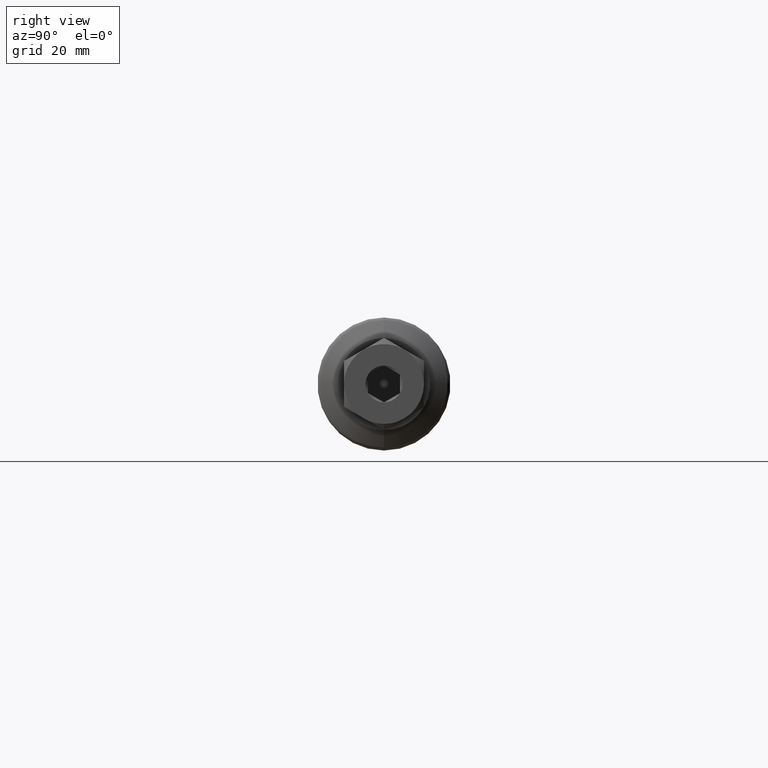
[diagram: clean part render]
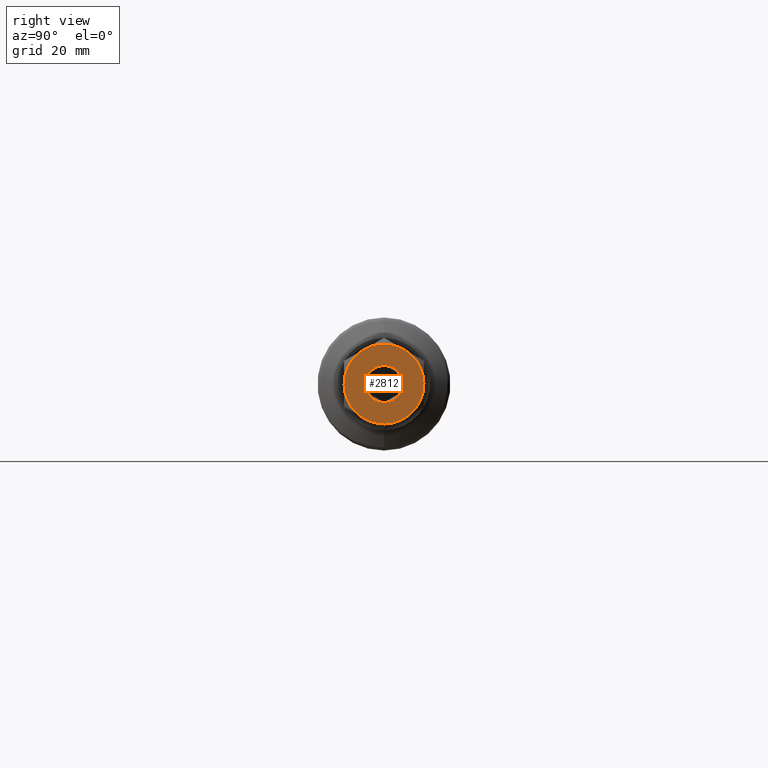
[diagram: same view with one face highlighted and labeled with its STEP entity id]
A machine part, right view. The second image highlights one B-rep face of the part: STEP entity #2812.
In plain terms, the highlighted planar face has unit normal (-1, 0, 0).
Its self-contained STEP definition (entity closure, byte-faithful):
#22 = VERTEX_POINT ( 'NONE', #1651 ) ;
#36 = DIRECTION ( 'NONE',  ( -1.000000000000000000, 0.000000000000000000, 0.000000000000000000 ) ) ;
#39 = DIRECTION ( 'NONE',  ( -1.000000000000000000, 0.000000000000000000, 0.000000000000000000 ) ) ;
#63 = CARTESIAN_POINT ( 'NONE',  ( 132.8100000000000023, 3.000000000000000000, 1.732050807568878303 ) ) ;
#99 = AXIS2_PLACEMENT_3D ( 'NONE', #780, #480, #2074 ) ;
#216 = DIRECTION ( 'NONE',  ( -1.000000000000000000, 0.000000000000000000, 0.000000000000000000 ) ) ;
#266 = DIRECTION ( 'NONE',  ( 0.000000000000000000, 0.000000000000000000, 1.000000000000000000 ) ) ;
#269 = VERTEX_POINT ( 'NONE', #2299 ) ;
#291 = DIRECTION ( 'NONE',  ( 0.000000000000000000, 0.000000000000000000, -1.000000000000000000 ) ) ;
#318 = EDGE_CURVE ( 'NONE', #329, #3198, #2006, .T. ) ;
#329 = VERTEX_POINT ( 'NONE', #63 ) ;
#365 = CIRCLE ( 'NONE', #803, 7.499999999999999112 ) ;
#424 = AXIS2_PLACEMENT_3D ( 'NONE', #2236, #1773, #2017 ) ;
#475 = AXIS2_PLACEMENT_3D ( 'NONE', #2955, #1134, #2937 ) ;
#480 = DIRECTION ( 'NONE',  ( -1.000000000000000000, 0.000000000000000000, 0.000000000000000000 ) ) ;
#513 = ORIENTED_EDGE ( 'NONE', *, *, #793, .T. ) ;
#559 = ORIENTED_EDGE ( 'NONE', *, *, #2415, .T. ) ;
#597 = CARTESIAN_POINT ( 'NONE',  ( 132.8100000000000023, -3.750000000000000444, -6.495190528383290030 ) ) ;
#615 = DIRECTION ( 'NONE',  ( 0.000000000000000000, 0.000000000000000000, -1.000000000000000000 ) ) ;
#619 = CIRCLE ( 'NONE', #1508, 3.464101615137755275 ) ;
#705 = CARTESIAN_POINT ( 'NONE',  ( 132.8100000000000023, 0.000000000000000000, -7.499999999999999112 ) ) ;
#729 = AXIS2_PLACEMENT_3D ( 'NONE', #2290, #1756, #2492 ) ;
#743 = CIRCLE ( 'NONE', #475, 7.499999999999999112 ) ;
#758 = PLANE ( 'NONE',  #1326 ) ;
#780 = CARTESIAN_POINT ( 'NONE',  ( 132.8100000000000023, 0.000000000000000000, 0.000000000000000000 ) ) ;
#791 = DIRECTION ( 'NONE',  ( -1.000000000000000000, 0.000000000000000000, 0.000000000000000000 ) ) ;
#793 = EDGE_CURVE ( 'NONE', #1028, #329, #619, .T. ) ;
#803 = AXIS2_PLACEMENT_3D ( 'NONE', #1810, #36, #829 ) ;
#829 = DIRECTION ( 'NONE',  ( 0.000000000000000000, 0.000000000000000000, 1.000000000000000000 ) ) ;
#840 = CIRCLE ( 'NONE', #2157, 7.499999999999999112 ) ;
#864 = CIRCLE ( 'NONE', #2450, 7.499999999999999112 ) ;
#944 = ORIENTED_EDGE ( 'NONE', *, *, #1169, .F. ) ;
#992 = VERTEX_POINT ( 'NONE', #2979 ) ;
#996 = AXIS2_PLACEMENT_3D ( 'NONE', #1064, #2902, #291 ) ;
#997 = CARTESIAN_POINT ( 'NONE',  ( 132.8100000000000023, 0.000000000000000000, 0.000000000000000000 ) ) ;
#1028 = VERTEX_POINT ( 'NONE', #2719 ) ;
#1064 = CARTESIAN_POINT ( 'NONE',  ( 132.8100000000000023, 0.000000000000000000, 0.000000000000000000 ) ) ;
#1134 = DIRECTION ( 'NONE',  ( -1.000000000000000000, 0.000000000000000000, 0.000000000000000000 ) ) ;
#1147 = DIRECTION ( 'NONE',  ( -1.000000000000000000, 0.000000000000000000, 0.000000000000000000 ) ) ;
#1155 = ORIENTED_EDGE ( 'NONE', *, *, #318, .T. ) ;
#1169 = EDGE_CURVE ( 'NONE', #2205, #1820, #1935, .T. ) ;
#1180 = CARTESIAN_POINT ( 'NONE',  ( 132.8100000000000023, 0.000000000000000000, 0.000000000000000000 ) ) ;
#1181 = CIRCLE ( 'NONE', #2391, 7.500000000000000000 ) ;
#1258 = FACE_OUTER_BOUND ( 'NONE', #2042, .T. ) ;
#1316 = CIRCLE ( 'NONE', #2245, 3.464101615137755275 ) ;
#1326 = AXIS2_PLACEMENT_3D ( 'NONE', #2307, #2858, #3365 ) ;
#1363 = CARTESIAN_POINT ( 'NONE',  ( 132.8100000000000023, 0.000000000000000000, 0.000000000000000000 ) ) ;
#1412 = CIRCLE ( 'NONE', #99, 3.464101615137755275 ) ;
#1431 = EDGE_CURVE ( 'NONE', #1872, #992, #365, .T. ) ;
#1442 = CIRCLE ( 'NONE', #996, 3.464101615137755275 ) ;
#1508 = AXIS2_PLACEMENT_3D ( 'NONE', #1610, #39, #2325 ) ;
#1524 = EDGE_CURVE ( 'NONE', #22, #2227, #1793, .T. ) ;
#1595 = ORIENTED_EDGE ( 'NONE', *, *, #3256, .F. ) ;
#1610 = CARTESIAN_POINT ( 'NONE',  ( 132.8100000000000023, 0.000000000000000000, 0.000000000000000000 ) ) ;
#1638 = DIRECTION ( 'NONE',  ( 0.000000000000000000, 0.000000000000000000, 1.000000000000000000 ) ) ;
#1651 = CARTESIAN_POINT ( 'NONE',  ( 132.8100000000000023, -3.000000000000000000, -1.732050807568878081 ) ) ;
#1756 = DIRECTION ( 'NONE',  ( -1.000000000000000000, 0.000000000000000000, 0.000000000000000000 ) ) ;
#1773 = DIRECTION ( 'NONE',  ( -1.000000000000000000, 0.000000000000000000, 0.000000000000000000 ) ) ;
#1784 = EDGE_CURVE ( 'NONE', #269, #1907, #864, .T. ) ;
#1793 = CIRCLE ( 'NONE', #2784, 3.464101615137755275 ) ;
#1801 = EDGE_CURVE ( 'NONE', #1907, #1872, #1902, .T. ) ;
#1810 = CARTESIAN_POINT ( 'NONE',  ( 132.8100000000000023, 0.000000000000000000, 0.000000000000000000 ) ) ;
#1820 = VERTEX_POINT ( 'NONE', #705 ) ;
#1872 = VERTEX_POINT ( 'NONE', #2873 ) ;
#1902 = CIRCLE ( 'NONE', #424, 7.499999999999999112 ) ;
#1907 = VERTEX_POINT ( 'NONE', #2890 ) ;
#1935 = CIRCLE ( 'NONE', #729, 7.499999999999999112 ) ;
#2006 = CIRCLE ( 'NONE', #2441, 3.464101615137755275 ) ;
#2017 = DIRECTION ( 'NONE',  ( 0.000000000000000000, 0.000000000000000000, 1.000000000000000000 ) ) ;
#2042 = EDGE_LOOP ( 'NONE', ( #2939, #2519, #2232, #2862, #2907, #944, #559 ) ) ;
#2074 = DIRECTION ( 'NONE',  ( 0.000000000000000000, 0.000000000000000000, 1.000000000000000000 ) ) ;
#2076 = CARTESIAN_POINT ( 'NONE',  ( 132.8100000000000023, 3.000000000000000000, -1.732050807568878303 ) ) ;
#2095 = CARTESIAN_POINT ( 'NONE',  ( 132.8100000000000023, 1.517883041479706208E-15, -3.464101615137755275 ) ) ;
#2157 = AXIS2_PLACEMENT_3D ( 'NONE', #1180, #2409, #1638 ) ;
#2158 = ORIENTED_EDGE ( 'NONE', *, *, #1524, .T. ) ;
#2205 = VERTEX_POINT ( 'NONE', #2882 ) ;
#2227 = VERTEX_POINT ( 'NONE', #2345 ) ;
#2232 = ORIENTED_EDGE ( 'NONE', *, *, #1784, .F. ) ;
#2236 = CARTESIAN_POINT ( 'NONE',  ( 132.8100000000000023, 0.000000000000000000, 0.000000000000000000 ) ) ;
#2245 = AXIS2_PLACEMENT_3D ( 'NONE', #2680, #1147, #3248 ) ;
#2288 = EDGE_CURVE ( 'NONE', #3207, #22, #1412, .T. ) ;
#2290 = CARTESIAN_POINT ( 'NONE',  ( 132.8100000000000023, 0.000000000000000000, 0.000000000000000000 ) ) ;
#2299 = CARTESIAN_POINT ( 'NONE',  ( 132.8100000000000023, -7.500000000000000000, 0.000000000000000000 ) ) ;
#2307 = CARTESIAN_POINT ( 'NONE',  ( 132.8100000000000023, 0.000000000000000000, 0.000000000000000000 ) ) ;
#2325 = DIRECTION ( 'NONE',  ( 0.000000000000000000, 0.000000000000000000, 1.000000000000000000 ) ) ;
#2345 = CARTESIAN_POINT ( 'NONE',  ( 132.8100000000000023, -3.000000000000000000, 1.732050807568878081 ) ) ;
#2391 = AXIS2_PLACEMENT_3D ( 'NONE', #2972, #3265, #615 ) ;
#2393 = EDGE_CURVE ( 'NONE', #3386, #269, #743, .T. ) ;
#2404 = DIRECTION ( 'NONE',  ( -1.000000000000000000, 0.000000000000000000, 0.000000000000000000 ) ) ;
#2409 = DIRECTION ( 'NONE',  ( -1.000000000000000000, 0.000000000000000000, 0.000000000000000000 ) ) ;
#2415 = EDGE_CURVE ( 'NONE', #2205, #992, #1181, .T. ) ;
#2441 = AXIS2_PLACEMENT_3D ( 'NONE', #1363, #2404, #2679 ) ;
#2450 = AXIS2_PLACEMENT_3D ( 'NONE', #997, #216, #3028 ) ;
#2492 = DIRECTION ( 'NONE',  ( 0.000000000000000000, 0.000000000000000000, 1.000000000000000000 ) ) ;
#2519 = ORIENTED_EDGE ( 'NONE', *, *, #1801, .F. ) ;
#2549 = FACE_BOUND ( 'NONE', #3106, .T. ) ;
#2559 = EDGE_CURVE ( 'NONE', #2227, #1028, #1316, .T. ) ;
#2679 = DIRECTION ( 'NONE',  ( 0.000000000000000000, 0.000000000000000000, 1.000000000000000000 ) ) ;
#2680 = CARTESIAN_POINT ( 'NONE',  ( 132.8100000000000023, 0.000000000000000000, 0.000000000000000000 ) ) ;
#2719 = CARTESIAN_POINT ( 'NONE',  ( 132.8100000000000023, -2.168404344971008868E-16, 3.464101615137755275 ) ) ;
#2784 = AXIS2_PLACEMENT_3D ( 'NONE', #2877, #791, #266 ) ;
#2812 = ADVANCED_FACE ( 'NONE', ( #2549, #1258 ), #758, .F. ) ;
#2813 = ORIENTED_EDGE ( 'NONE', *, *, #2288, .T. ) ;
#2851 = ORIENTED_EDGE ( 'NONE', *, *, #2559, .T. ) ;
#2858 = DIRECTION ( 'NONE',  ( -1.000000000000000000, 0.000000000000000000, 0.000000000000000000 ) ) ;
#2862 = ORIENTED_EDGE ( 'NONE', *, *, #2393, .F. ) ;
#2873 = CARTESIAN_POINT ( 'NONE',  ( 132.8100000000000023, 3.750000000000000444, 6.495190528383290030 ) ) ;
#2877 = CARTESIAN_POINT ( 'NONE',  ( 132.8100000000000023, 0.000000000000000000, 0.000000000000000000 ) ) ;
#2882 = CARTESIAN_POINT ( 'NONE',  ( 132.8100000000000023, 3.750000000000000888, -6.495190528383289141 ) ) ;
#2890 = CARTESIAN_POINT ( 'NONE',  ( 132.8100000000000023, -3.750000000000000444, 6.495190528383290030 ) ) ;
#2897 = EDGE_CURVE ( 'NONE', #1820, #3386, #840, .T. ) ;
#2902 = DIRECTION ( 'NONE',  ( 1.000000000000000000, 0.000000000000000000, 0.000000000000000000 ) ) ;
#2907 = ORIENTED_EDGE ( 'NONE', *, *, #2897, .F. ) ;
#2937 = DIRECTION ( 'NONE',  ( 0.000000000000000000, 0.000000000000000000, 1.000000000000000000 ) ) ;
#2939 = ORIENTED_EDGE ( 'NONE', *, *, #1431, .F. ) ;
#2955 = CARTESIAN_POINT ( 'NONE',  ( 132.8100000000000023, 0.000000000000000000, 0.000000000000000000 ) ) ;
#2972 = CARTESIAN_POINT ( 'NONE',  ( 132.8100000000000023, 0.000000000000000000, 0.000000000000000000 ) ) ;
#2979 = CARTESIAN_POINT ( 'NONE',  ( 132.8100000000000023, 7.500000000000000000, 0.000000000000000000 ) ) ;
#3028 = DIRECTION ( 'NONE',  ( 0.000000000000000000, 0.000000000000000000, 1.000000000000000000 ) ) ;
#3106 = EDGE_LOOP ( 'NONE', ( #2851, #513, #1155, #1595, #2813, #2158 ) ) ;
#3198 = VERTEX_POINT ( 'NONE', #2076 ) ;
#3207 = VERTEX_POINT ( 'NONE', #2095 ) ;
#3248 = DIRECTION ( 'NONE',  ( 0.000000000000000000, 0.000000000000000000, 1.000000000000000000 ) ) ;
#3256 = EDGE_CURVE ( 'NONE', #3207, #3198, #1442, .T. ) ;
#3265 = DIRECTION ( 'NONE',  ( 1.000000000000000000, 0.000000000000000000, 0.000000000000000000 ) ) ;
#3365 = DIRECTION ( 'NONE',  ( 0.000000000000000000, 0.000000000000000000, 1.000000000000000000 ) ) ;
#3386 = VERTEX_POINT ( 'NONE', #597 ) ;